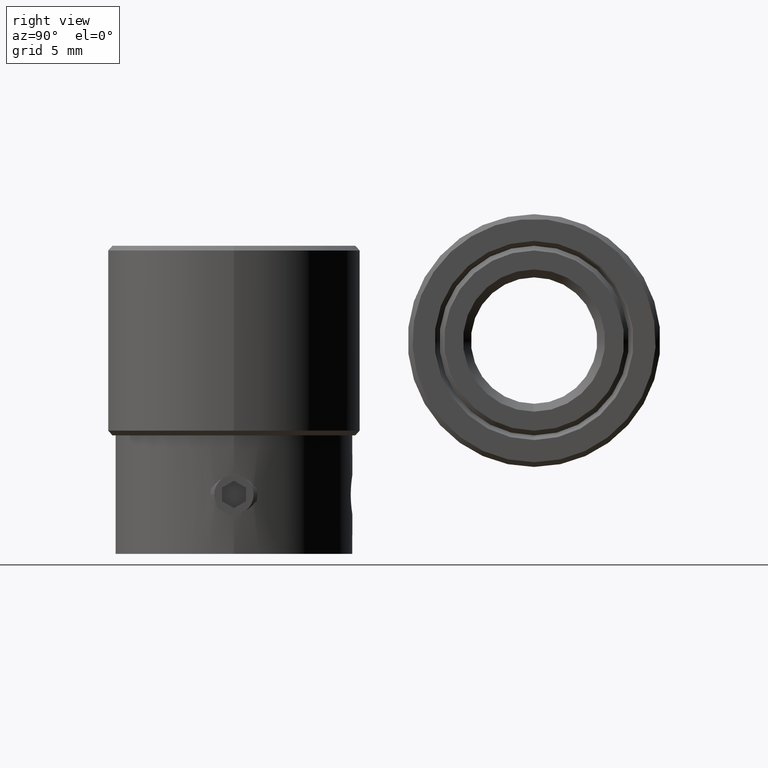
[diagram: clean part render]
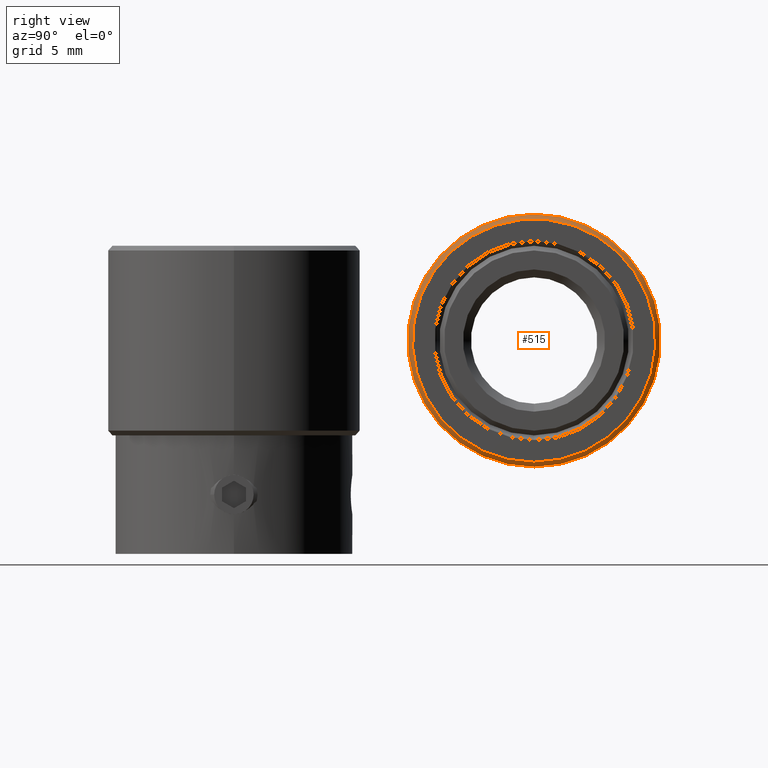
[diagram: same view with one face highlighted and labeled with its STEP entity id]
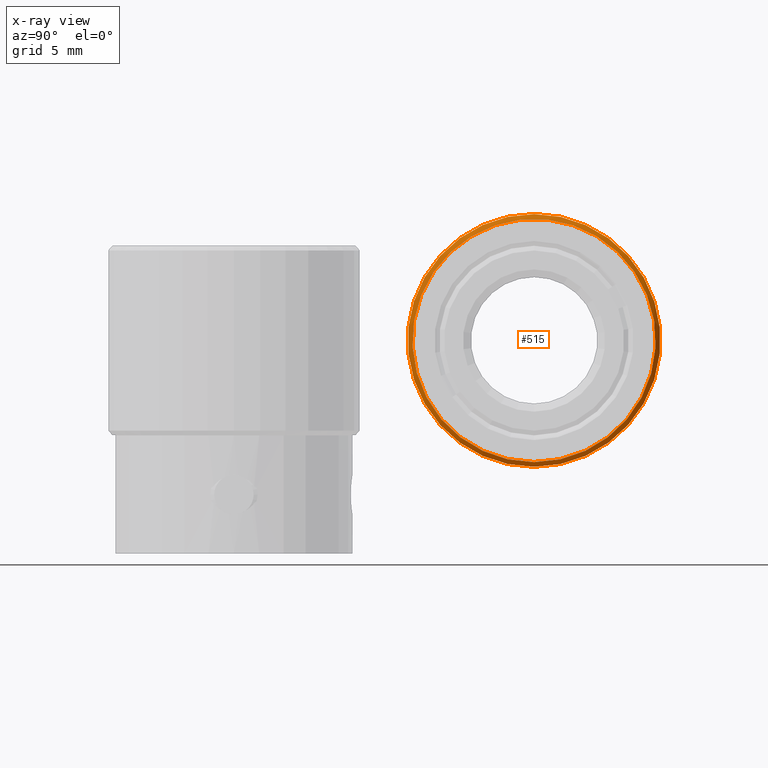
[diagram: x-ray of the same camera — body ghosted, the highlighted face saturated]
A machine part, right view. The second image highlights one B-rep face of the part: STEP entity #515.
The next image is the same camera in x-ray: the body ghosted, the highlighted face saturated — about 0% of this face is hidden behind the body in this view.
In plain terms, the highlighted conical surface has half-angle 45 deg.
Its self-contained STEP definition (entity closure, byte-faithful):
#515 = ADVANCED_FACE( '', ( #724, #725 ), #726, .T. );
#724 = FACE_OUTER_BOUND( '', #968, .T. );
#725 = FACE_BOUND( '', #969, .T. );
#726 = CONICAL_SURFACE( '', #970, 7.70000000000000, 0.785398163397448 );
#968 = EDGE_LOOP( '', ( #1388 ) );
#969 = EDGE_LOOP( '', ( #1389 ) );
#970 = AXIS2_PLACEMENT_3D( '', #1390, #1391, #1392 );
#1388 = ORIENTED_EDGE( '', *, *, #1657, .F. );
#1389 = ORIENTED_EDGE( '', *, *, #1658, .F. );
#1390 = CARTESIAN_POINT( '', ( 6.00000000000000, 19.0000000000000, -6.00000000000000 ) );
#1391 = DIRECTION( '', ( -1.00000000000000, 0.000000000000000, -6.12323399573677E-017 ) );
#1392 = DIRECTION( '', ( -6.12323399573677E-017, 0.000000000000000, 1.00000000000000 ) );
#1657 = EDGE_CURVE( '', #1864, #1864, #1865, .F. );
#1658 = EDGE_CURVE( '', #1866, #1866, #1867, .T. );
#1864 = VERTEX_POINT( '', #2452 );
#1865 = CIRCLE( '', #2453, 8.00000000000000 );
#1866 = VERTEX_POINT( '', #2454 );
#1867 = CIRCLE( '', #2455, 7.70000000000000 );
#2452 = CARTESIAN_POINT( '', ( 5.70000000000000, 19.0000000000000, -14.0000000000000 ) );
#2453 = AXIS2_PLACEMENT_3D( '', #2729, #2730, #2731 );
#2454 = CARTESIAN_POINT( '', ( 6.00000000000000, 19.0000000000000, -13.7000000000000 ) );
#2455 = AXIS2_PLACEMENT_3D( '', #2732, #2733, #2734 );
#2729 = CARTESIAN_POINT( '', ( 5.70000000000000, 19.0000000000000, -6.00000000000000 ) );
#2730 = DIRECTION( '', ( 1.00000000000000, 0.000000000000000, 6.12323399573677E-017 ) );
#2731 = DIRECTION( '', ( 6.12323399573677E-017, 0.000000000000000, -1.00000000000000 ) );
#2732 = CARTESIAN_POINT( '', ( 6.00000000000000, 19.0000000000000, -6.00000000000000 ) );
#2733 = DIRECTION( '', ( 1.00000000000000, 0.000000000000000, 6.12323399573677E-017 ) );
#2734 = DIRECTION( '', ( 6.12323399573677E-017, 0.000000000000000, -1.00000000000000 ) );